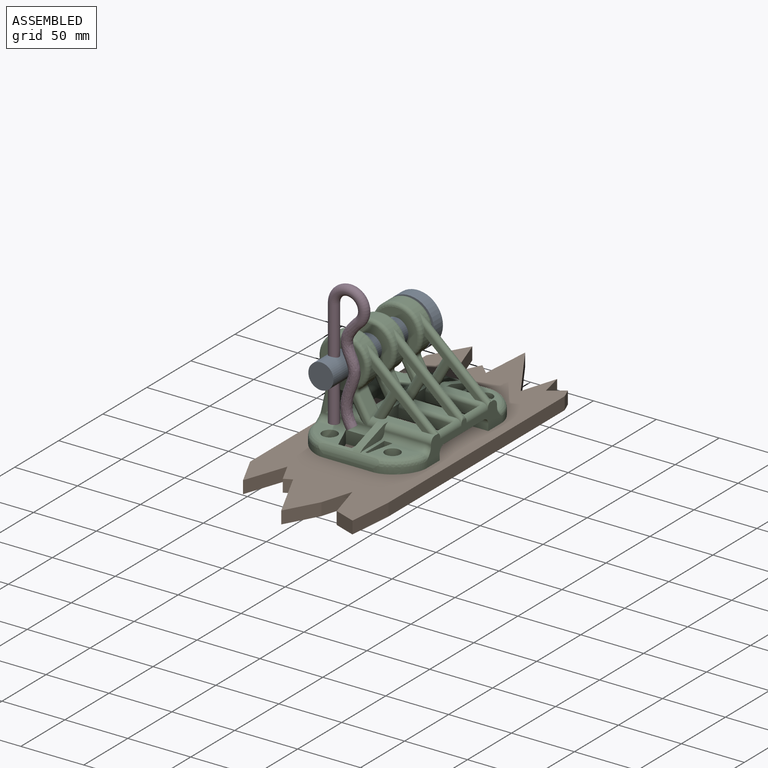
[diagram: assembled view]
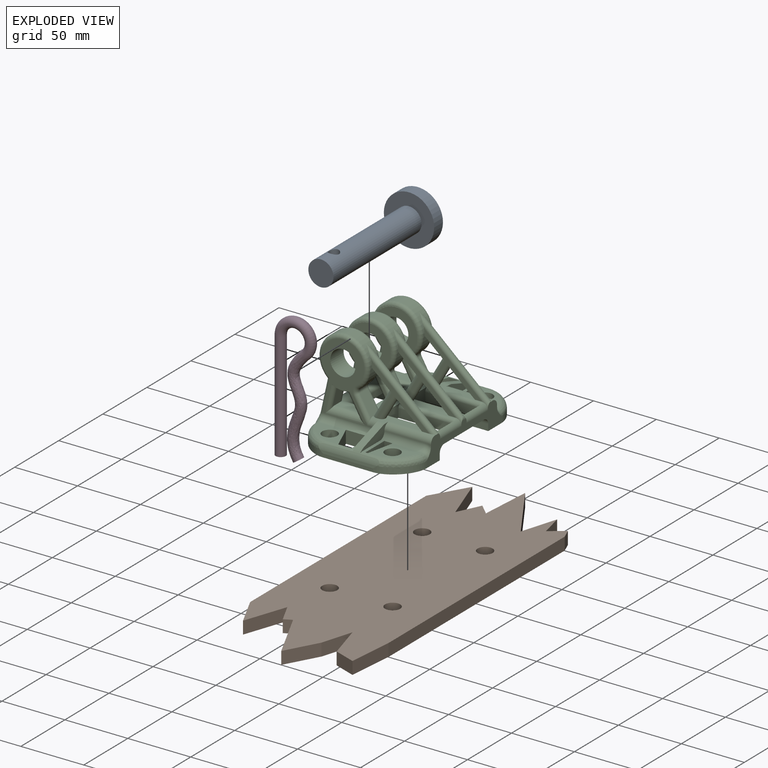
[diagram: exploded view]
GUIDED TOUR — MATED ASSEMBLY (Onshape document 7c137e21c83db5eac4d95559, AutoMate assembly 7c137e21c83db5eac4d95559_6dd15063242844d80d73fd73_36bd6ba807ab9eb103f367f9_default)

This assembly has 4 components, labeled P0..P3 below (a component is one placed occurrence of a part; the same part can appear more than once), held together by 6 mates. A mate is a constraint between two components; its type names the relative motion it leaves free:
  CYLINDRICAL — leaves both rotation about and translation along the listed axis free,
  PLANAR — leaves sliding in the plane through the listed point (normal = the listed direction) and rotation about that normal free,
  SLIDER — leaves translation along the listed axis free.
Axis/direction vectors are unit vectors and 'through' points are millimeter coordinates, both in the assembly's world frame.

MATES
  1. SLIDER "Slider 1": P0 <-> P2, axis (0.000, -1.000, 0.000) through (-56.71, -21.18, 62.98) mm
  2. PLANAR "Planar 2": P0 <-> P2, direction (0.000, -1.000, 0.000) through (-56.71, 28.82, 62.98) mm
  3. CYLINDRICAL "Cylindrical 2": P2 <-> P1, axis (0.000, 0.000, 1.000) through (-6.71, -61.18, 17.98) mm
  4. SLIDER "Slider 2": P3 <-> P0, axis (0.000, 0.000, 1.000) through (-56.71, -56.26, 67.28) mm
  5. PLANAR "Planar 1": P2 <-> P1, direction (0.000, 0.000, -1.000) through (-32.06, 33.09, 7.98) mm
  6. CYLINDRICAL "Cylindrical 1": P2 <-> P1, axis (0.000, 0.000, 1.000) through (-6.71, 43.82, 17.98) mm

ASSEMBLY ORDER
  1. P2 — the base component [order verified]
  2. P0 [order verified]
  3. P3 [order verified]
  4. P1 [order verified]
Order-tag legend:
  [order verified] — this step's position reverses a verified removal order: the component was checked to insert without passing through the ones already placed.

Of the 4 components, 1 carries the full construction recipe — the FeatureScript program that regenerates the part's solid from scratch; the rest are supplied as boundary geometry only.
Each toured component is shown spotlighted twice — in the assembled view, then in the exploded view, where a leader line traces a displaced component back to its assembled socket (saturated green if recipe-attached, orange if geometry-only; every other component desaturated gray) — followed by its recipe or geometry summary and the mates that hold it.
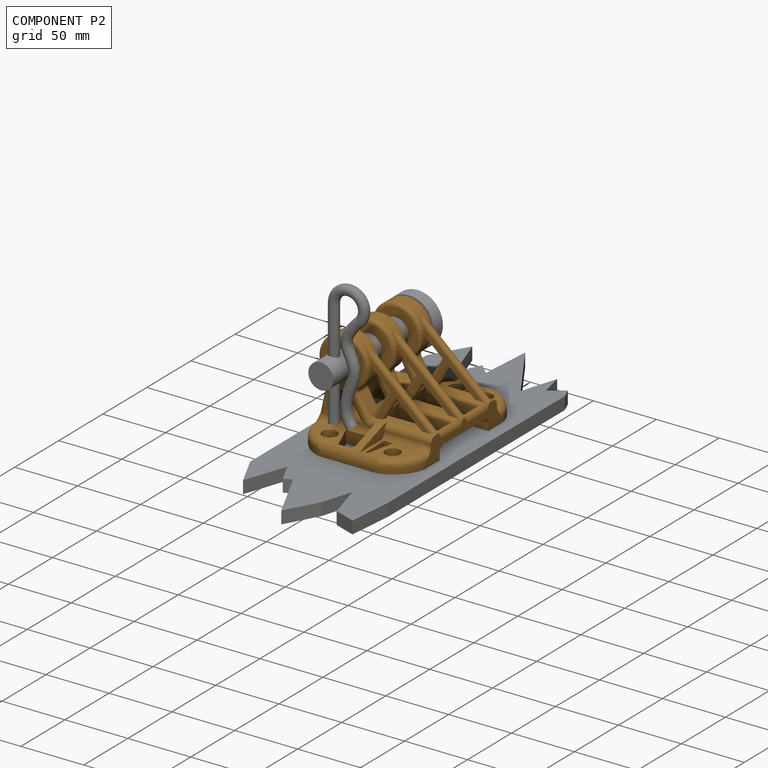
[diagram: component P2 — assembled]
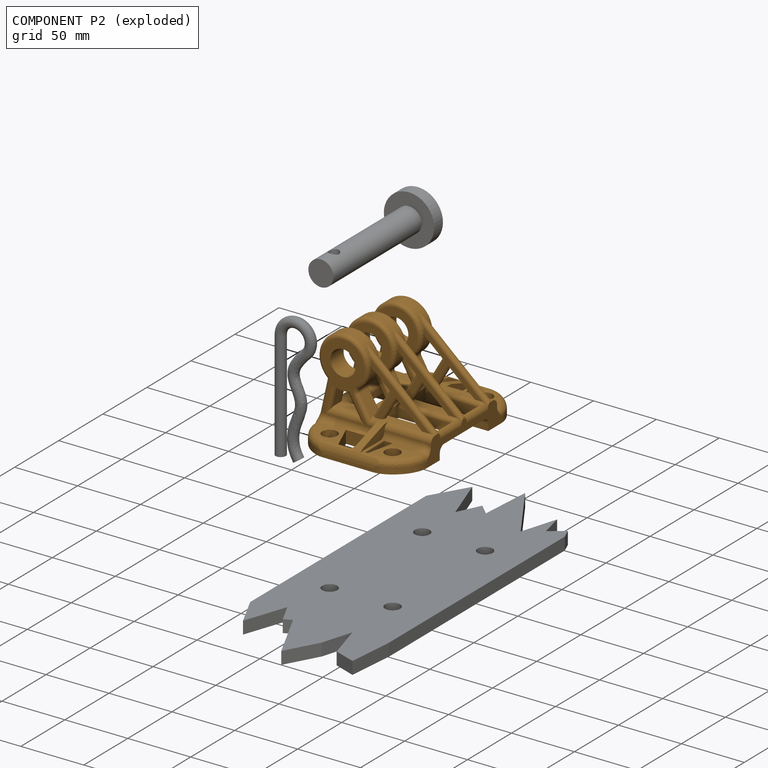
[diagram: component P2 — exploded]
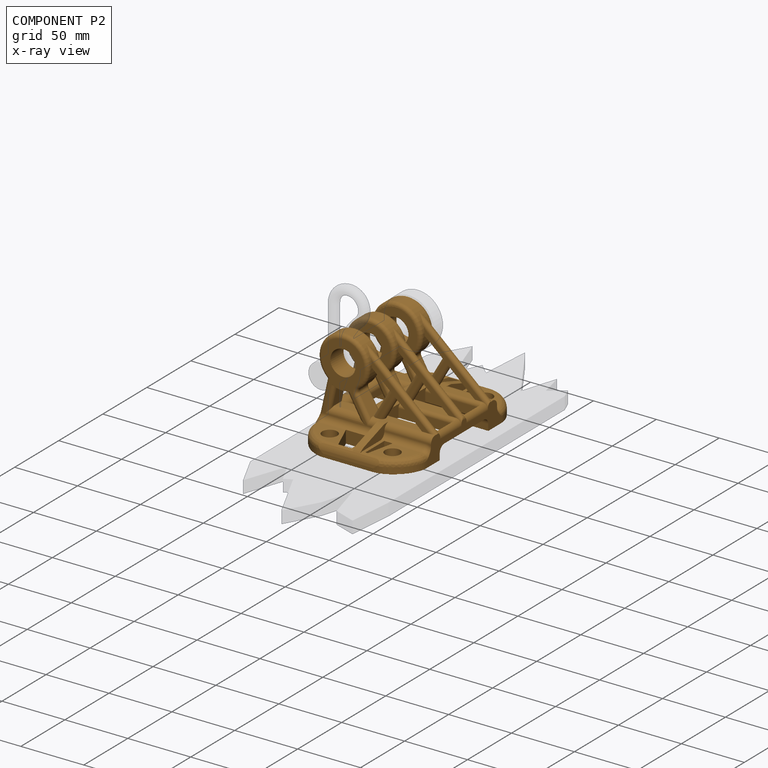
[diagram: component P2 — x-ray view]
COMPONENT P2 — geometry summary (no construction recipe available for this part):
  bounding box: 135.7 x 110.1 x 77.9 mm
  B-rep topology: 1 solid, 338 faces, 2052 edges
  volume: 161199 mm^3 (14% of its bounding box)
Held by: SLIDER mate "Slider 1" to P0; PLANAR mate "Planar 2" to P0; CYLINDRICAL mate "Cylindrical 2" to P1; PLANAR mate "Planar 1" to P1; CYLINDRICAL mate "Cylindrical 1" to P1.
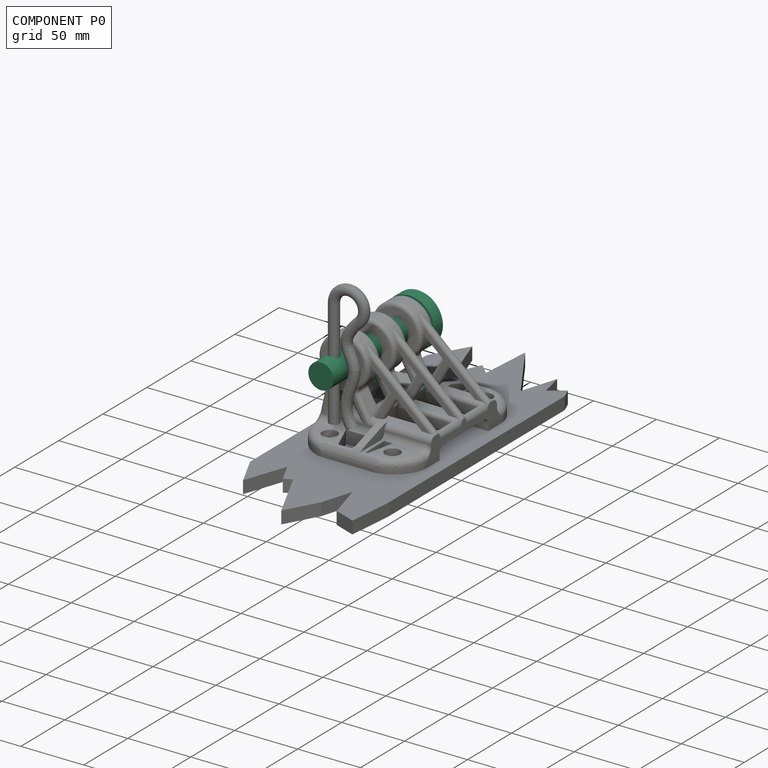
[diagram: component P0 — assembled]
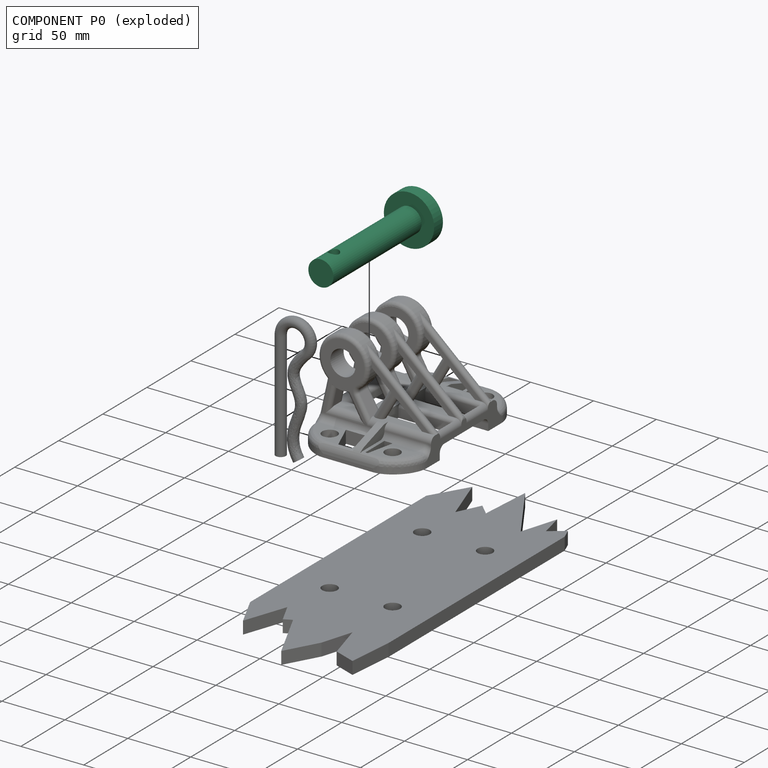
[diagram: component P0 — exploded]
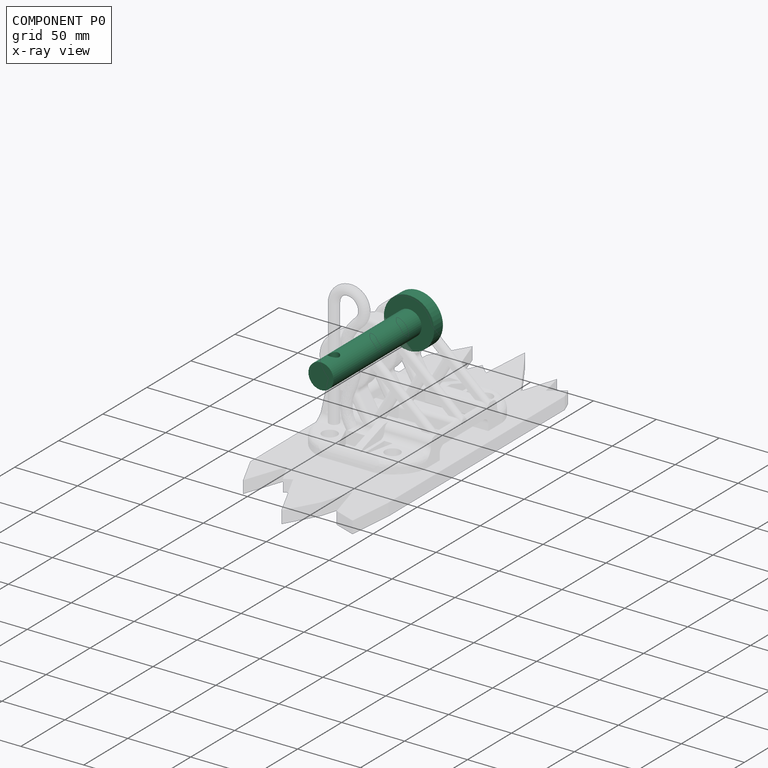
[diagram: component P0 — x-ray view]
COMPONENT P0 — recipe-attached (CADFS 00391735, mesh-verified: the recipe's output STEP matches this component's geometry to below the mesh-comparison resolution (tessellation chordal tolerance ~0.185 mm)).
Held by: SLIDER mate "Slider 1" to P2; PLANAR mate "Planar 2" to P2; SLIDER mate "Slider 2" to P3.
Construction recipe (FeatureScript — the CAD program that rebuilds this solid; sketch coordinates are in the units given by the * unit suffixes, e.g. mm):

FeatureScript 2091;
import(path : "onshape/std/geometry.fs", version : "2091.0");
import(path : "onshape/std/common.fs", version : "2091.0");
const mm = millimeter;
const VERTEX = EntityType.VERTEX;
const EDGE = EntityType.EDGE;
const FACE = EntityType.FACE;
const BODY = EntityType.BODY;
function v(x, y){return vector(x, y);}
function OD(order){return orderDisambiguation(order);}
function OSD(set){return originalSetDisambiguation(set);}
function TD(topology){return topologyDisambiguation(topology);}
function TDD(query){return trueDependencyDisambiguation(query);}
function sQuery(a, b, c) {return sketchEntityQuery(a, b, c);}

annotation { "Feature Type Name" : "Feature", "Feature Type Description" : "" }
export const myFeature = defineFeature(function(context is Context, id is Id, definition is map)
    precondition{}
    {
        {
            var Q0;
            Q0=qCreatedBy(makeId("Front.planeOp"),FACE);
            var sketch = newSketch(context, id + "F0", { "sketchPlane" : qUnion([Q0])});
            skLineSegment(sketch, "E0", {"start": v(-75.09, 0) * mm, "end": v(-75.09, 20) * mm});
            skLineSegment(sketch, "E1", {"start": v(-75.09, 20) * mm, "end": v(-65.09, 20) * mm});
            skLineSegment(sketch, "E2", {"start": v(-65.09, 20) * mm, "end": v(-65.09, 10) * mm});
            skLineSegment(sketch, "E3", {"start": v(-65.09, 10) * mm, "end": v(34.91, 10) * mm});
            skLineSegment(sketch, "E4", {"start": v(34.91, 10) * mm, "end": v(34.91, 0) * mm});
            skLineSegment(sketch, "E5", {"start": v(34.91, 0) * mm, "end": v(-75.09, 0) * mm});
            skSolve(sketch);
        }
        {
            var Q0;
            Q0=makeQuery(id+"F0.imprint","IMPRINT",FACE,{"disambiguationData":[TD([[makeQuery(id+"F0.imprint","IMPRINT",EDGE,{"derivedFrom":sQuery(id+"F0.wireOp",EDGE,"E0")}),-1.0]])]});
            var Q1;
            Q1=sQuery(id+"F0.wireOp",EDGE,"E5");
            revolve(context, id + "F1", {"entities" : qUnion([Q0]), "axis" : qUnion([Q1]), "revolveType" : RevolveType.FULL});
        }
        {
            var Q0;
            Q0=qCreatedBy(makeId("Front.planeOp"),FACE);
            var sketch = newSketch(context, id + "F2", { "sketchPlane" : qUnion([Q0])});
            skCircle(sketch, "E6", {"center": v(20, 0) * mm, "radius": 4 * mm});
            skSolve(sketch);
        }
        {
            var Q0;
            Q0 = qSketchRegion(id + "F2", true);
            var Q1;
            Q1=sQuery(id+"F2.wireOp",EDGE,"E6");
            extrude(context, id + "F3", {"entities" : qUnion([Q0]), "operationType" : NewBodyOperationType.REMOVE, "surfaceEntities" : qUnion([Q1]), "oppositeDirection" : true, "depth" : 100 * mm, "symmetric" : true});
        }
    });
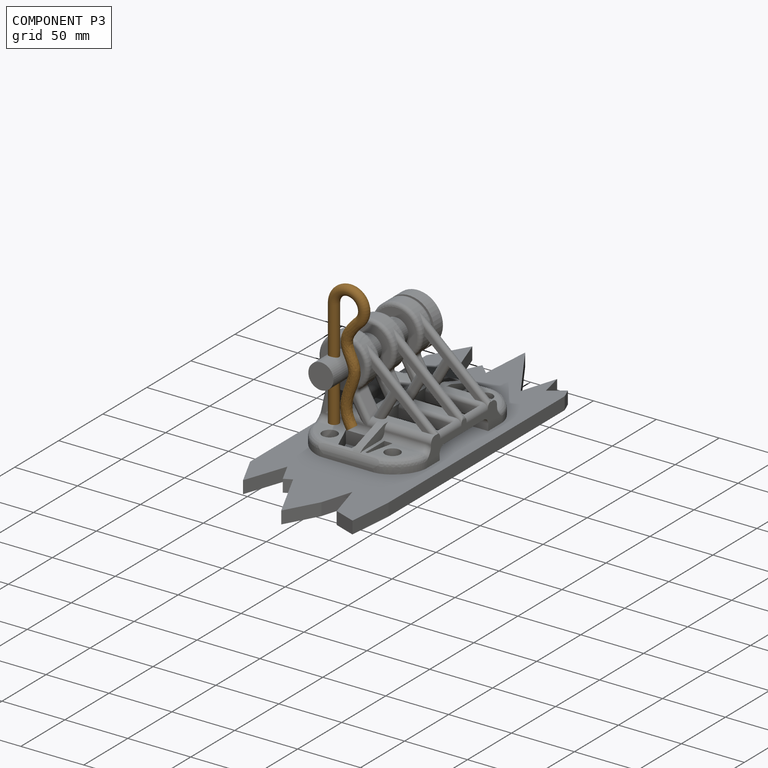
[diagram: component P3 — assembled]
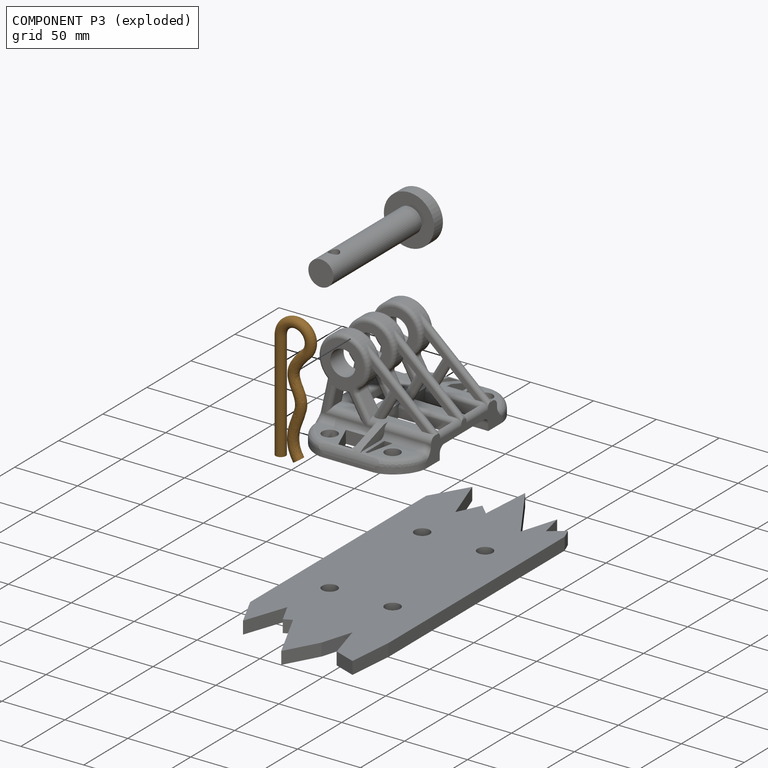
[diagram: component P3 — exploded]
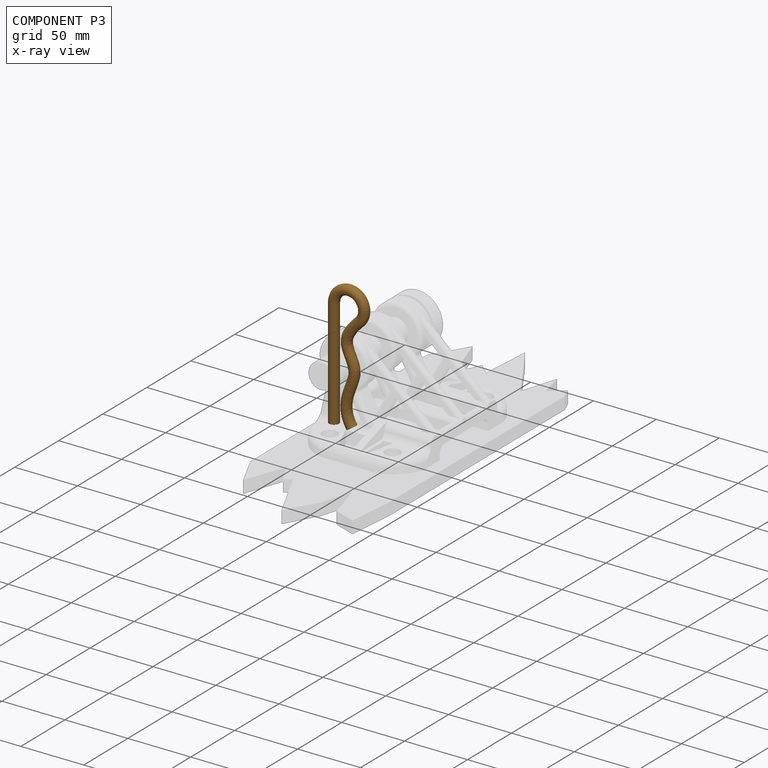
[diagram: component P3 — x-ray view]
COMPONENT P3 — geometry summary (no construction recipe available for this part):
  bounding box: 105.7 x 34.6 x 16.0 mm
  B-rep topology: 1 solid, 5 faces, 14 edges
  volume: 10927 mm^3 (19% of its bounding box)
  symmetry: mirror-symmetric across its z mid-plane
Held by: SLIDER mate "Slider 2" to P0.
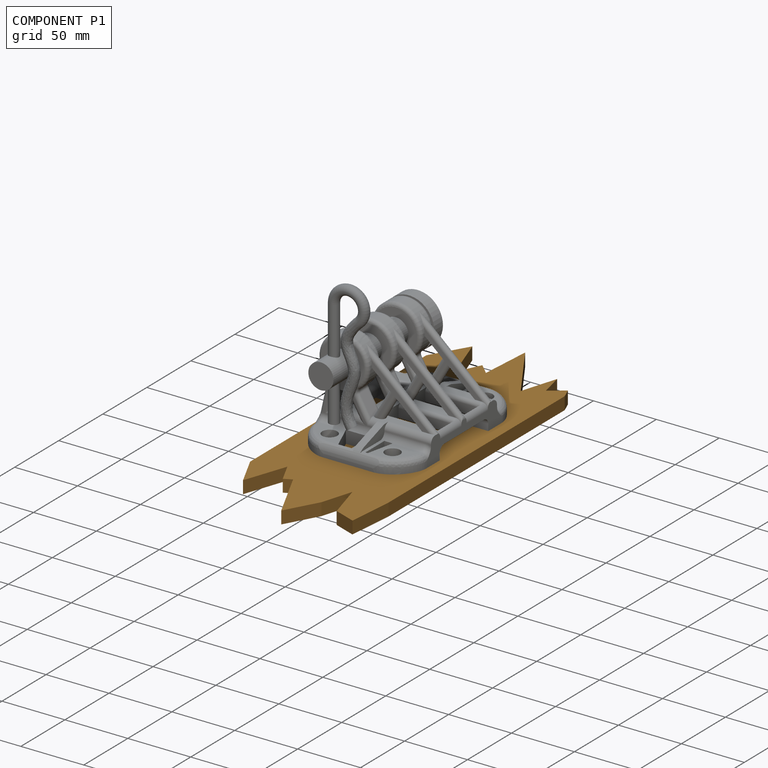
[diagram: component P1 — assembled]
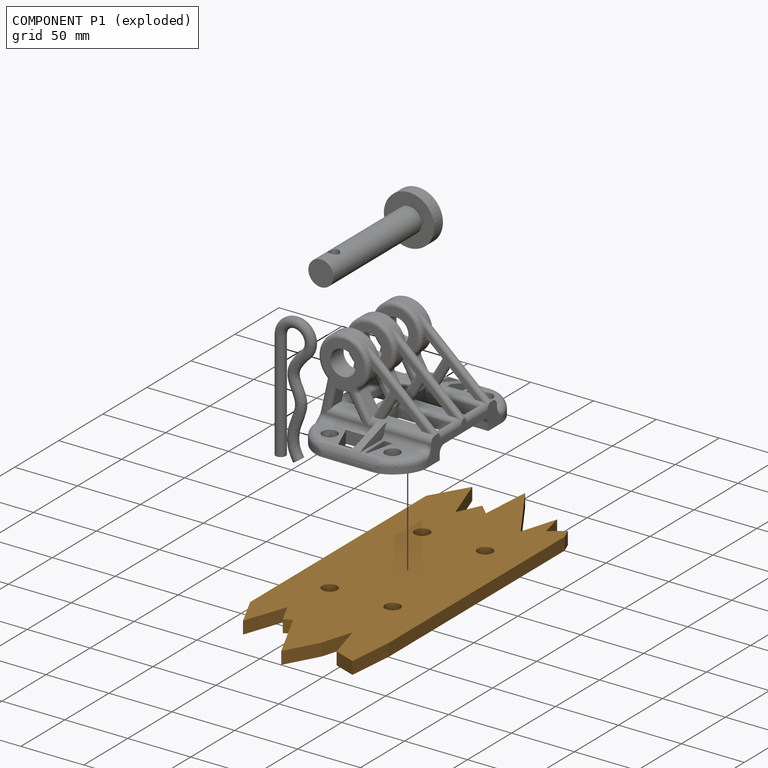
[diagram: component P1 — exploded]
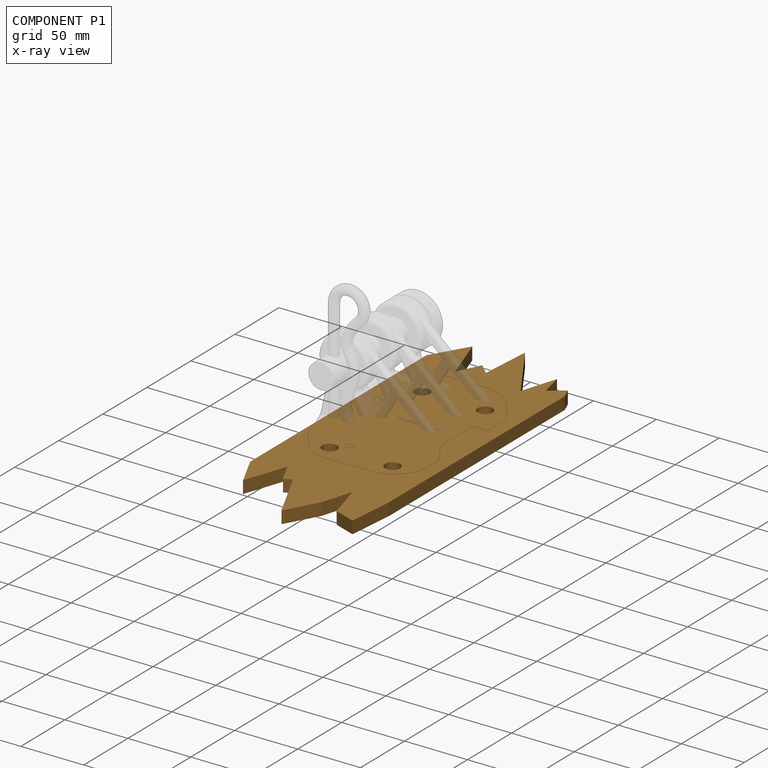
[diagram: component P1 — x-ray view]
COMPONENT P1 — geometry summary (no construction recipe available for this part):
  bounding box: 290.6 x 110.0 x 10.0 mm
  B-rep topology: 1 solid, 28 faces, 160 edges
  volume: 249195 mm^3 (78% of its bounding box)
  symmetry: mirror-symmetric across its z mid-plane
Held by: CYLINDRICAL mate "Cylindrical 2" to P2; PLANAR mate "Planar 1" to P2; CYLINDRICAL mate "Cylindrical 1" to P2.
PROVENANCE & LICENSES
Assembly (occurrences, transforms, mates, per-part STEP geometry): AutoMate dataset, Zenodo record 7776208, CC0.
Construction recipes: CADFS (HuggingFace VladPyatov/CADFS, CC-BY-4.0, layered over the ABC dataset), FeatureScript reconstruction programs keyed by ABC model id.
Join: ABC meta listings map ABC model id -> Onshape documentId; within a shared document, parts are matched by geometric signature (bounding-box dims + volume at 0.1% relative tolerance, exact B-rep face/solid counts).
Verification: 1 of this assembly's 4 components carries a recipe attachment, and every attachment is mesh-verified: the CADFS STEP and the AutoMate member STEP were compared as meshes in their shared local frame (symmetric sampled-point-to-mesh distance); worst across the 1 attachment: below the mesh-comparison resolution (tessellation chordal tolerance ~0.185 mm) on a 124 mm part.
Renders: orthographic iso camera (az 35 / el 25); the floor grid conveys scale (grid pitch printed in each image; no ruler). In the exploded view each component is displaced by its stored offset vector: the offsets alone carry the explosion direction (mate normal/axis signs are not orientation cues and do not encode it), and separation distances are assigned per mate-chain, not proportionally to assembly-order depth.
